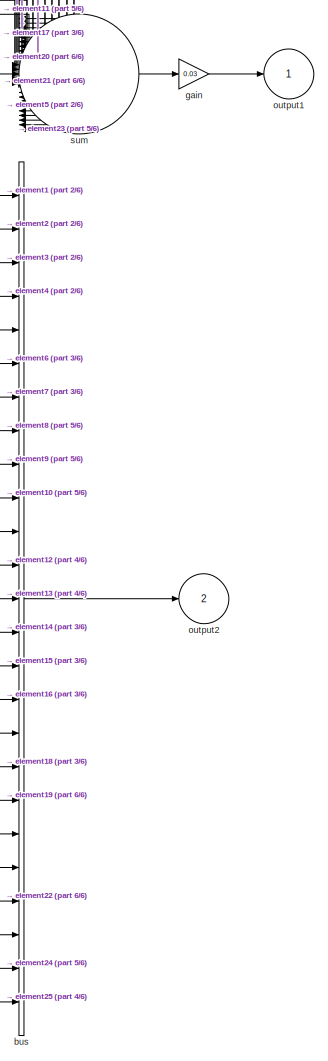
[diagram: root canvas - part 1/6, top right region]
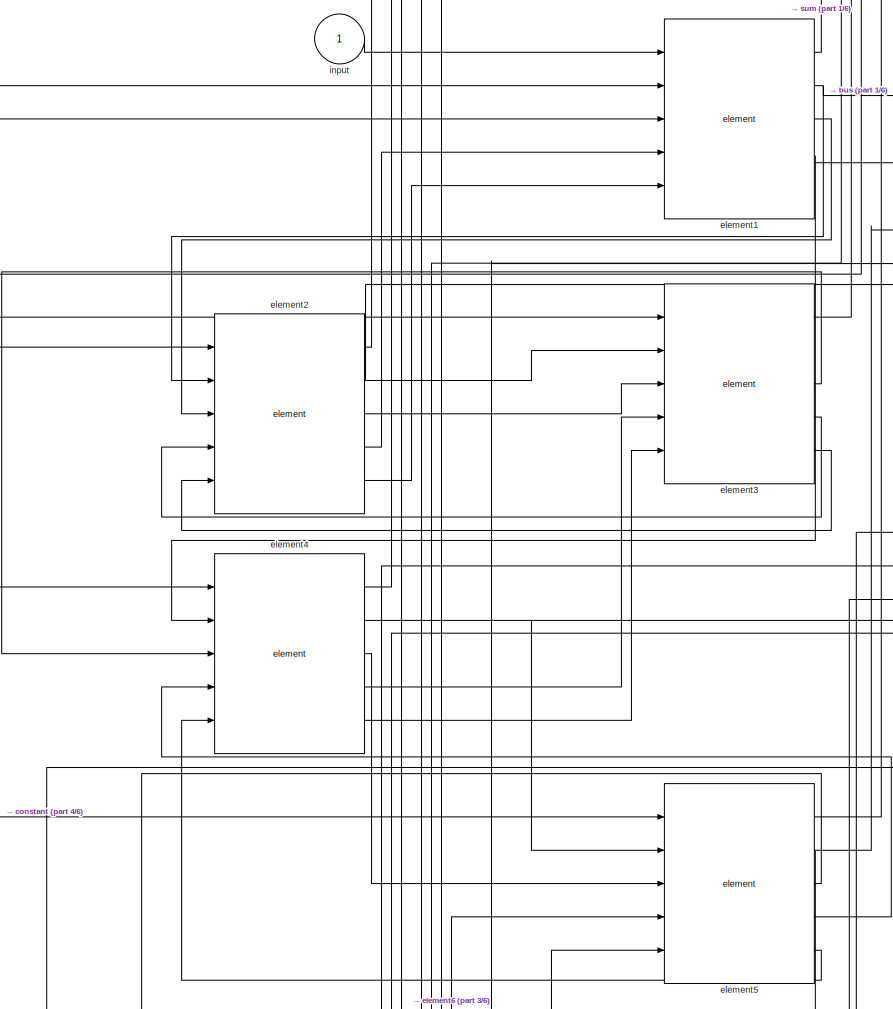
[diagram: root canvas - part 2/6, top center region]
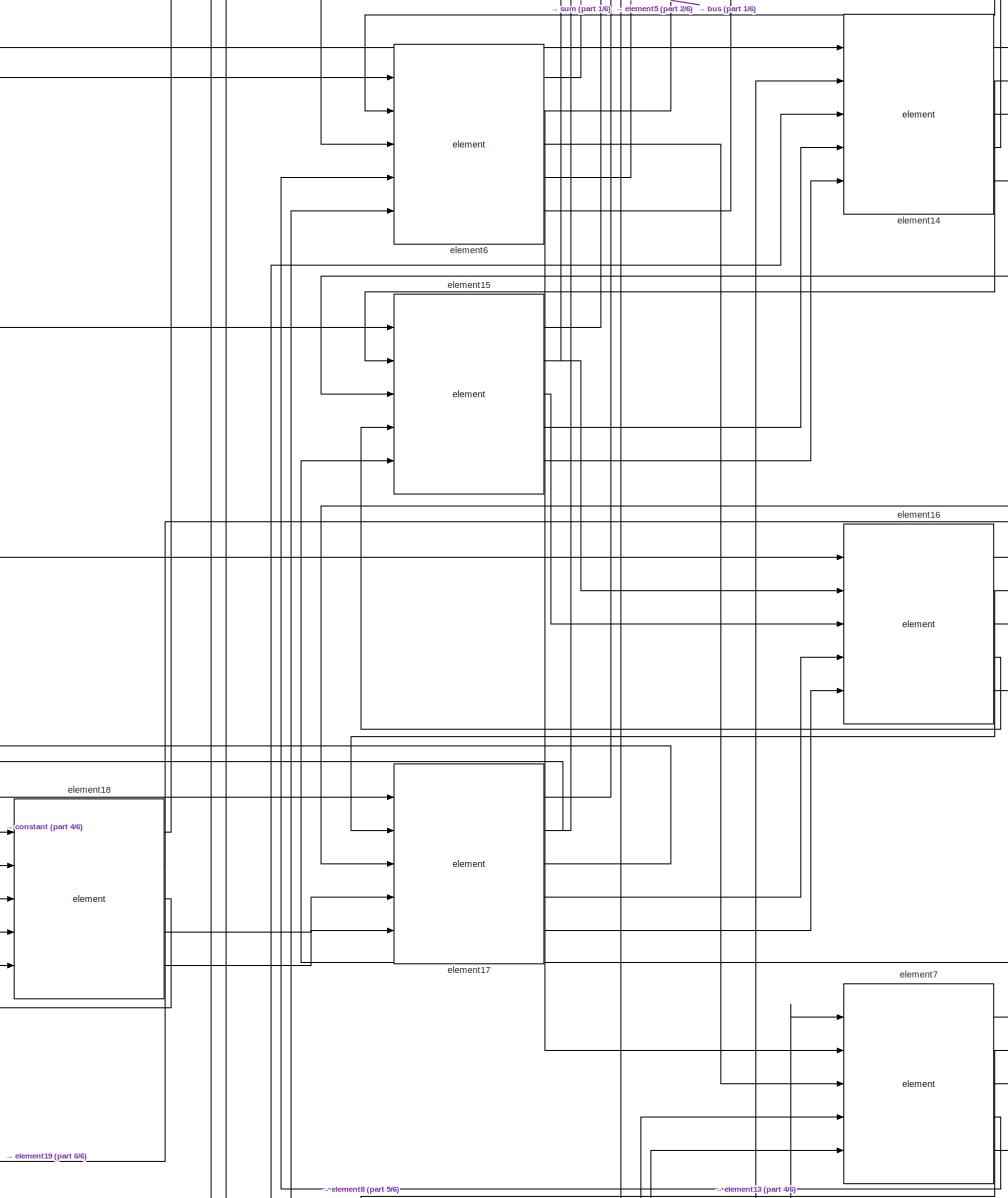
[diagram: root canvas - part 3/6, central region]
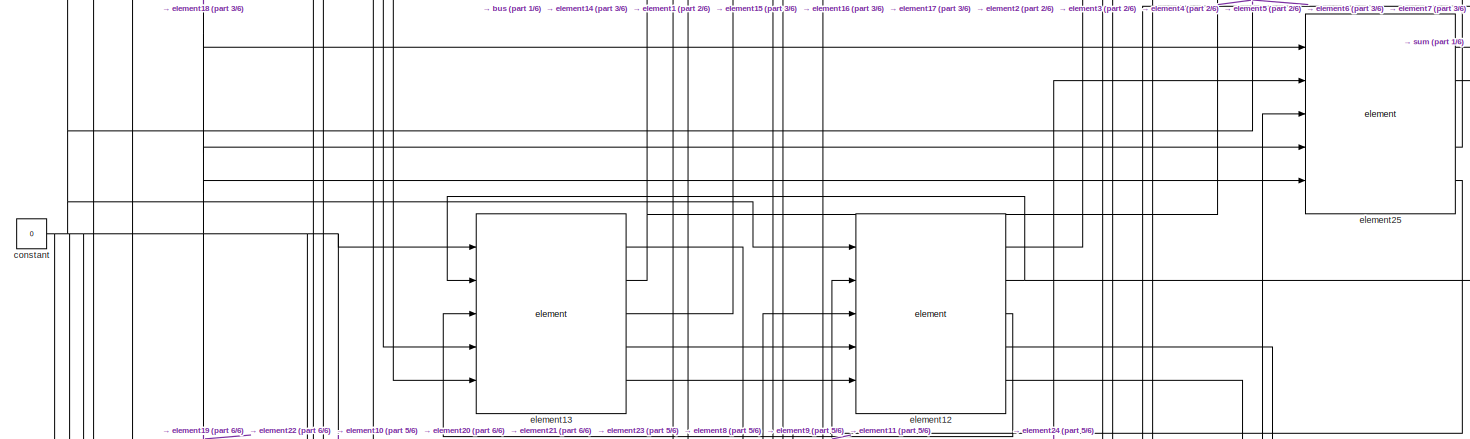
[diagram: root canvas - part 4/6, middle left region]
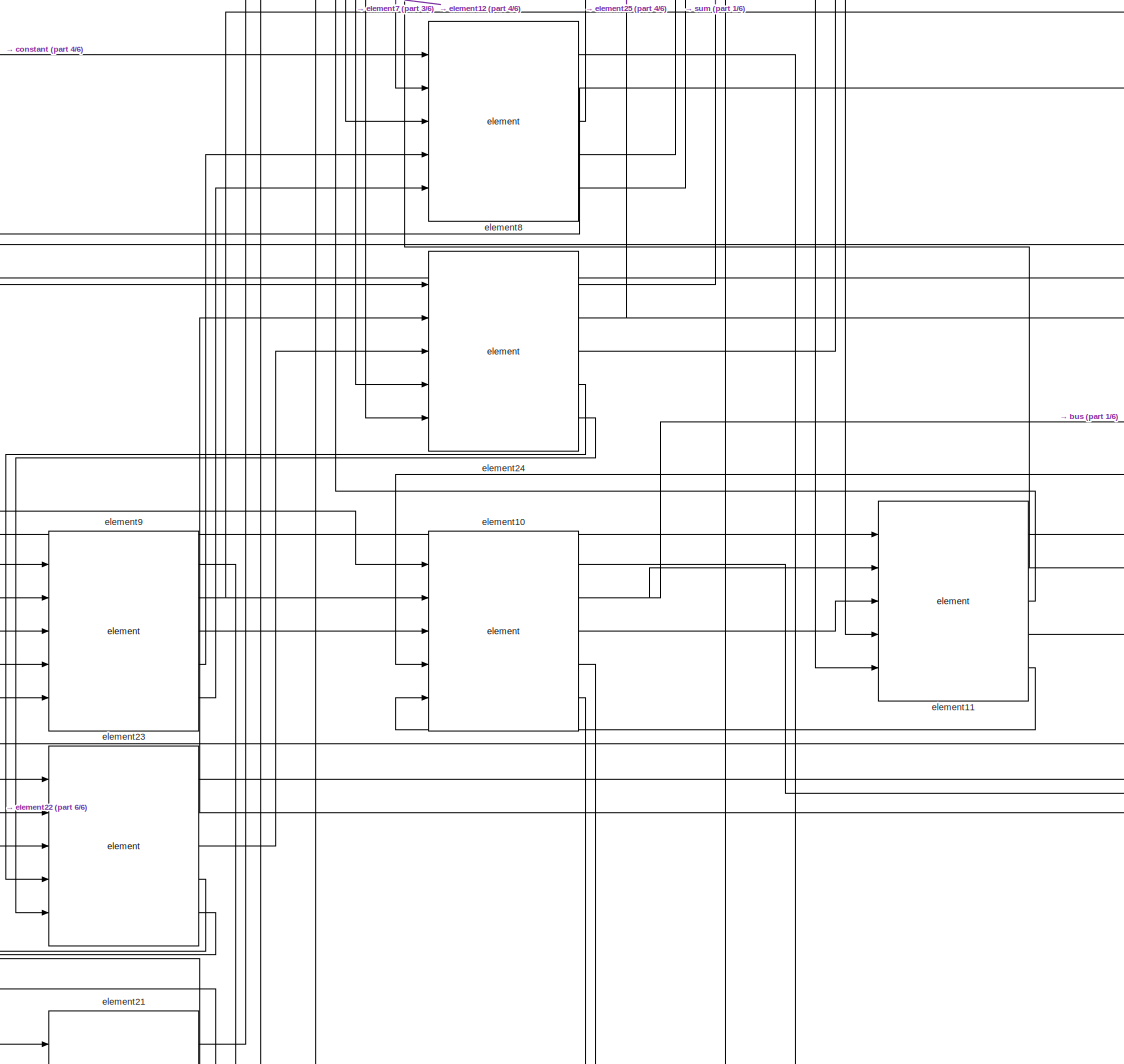
[diagram: root canvas - part 5/6, bottom center region]
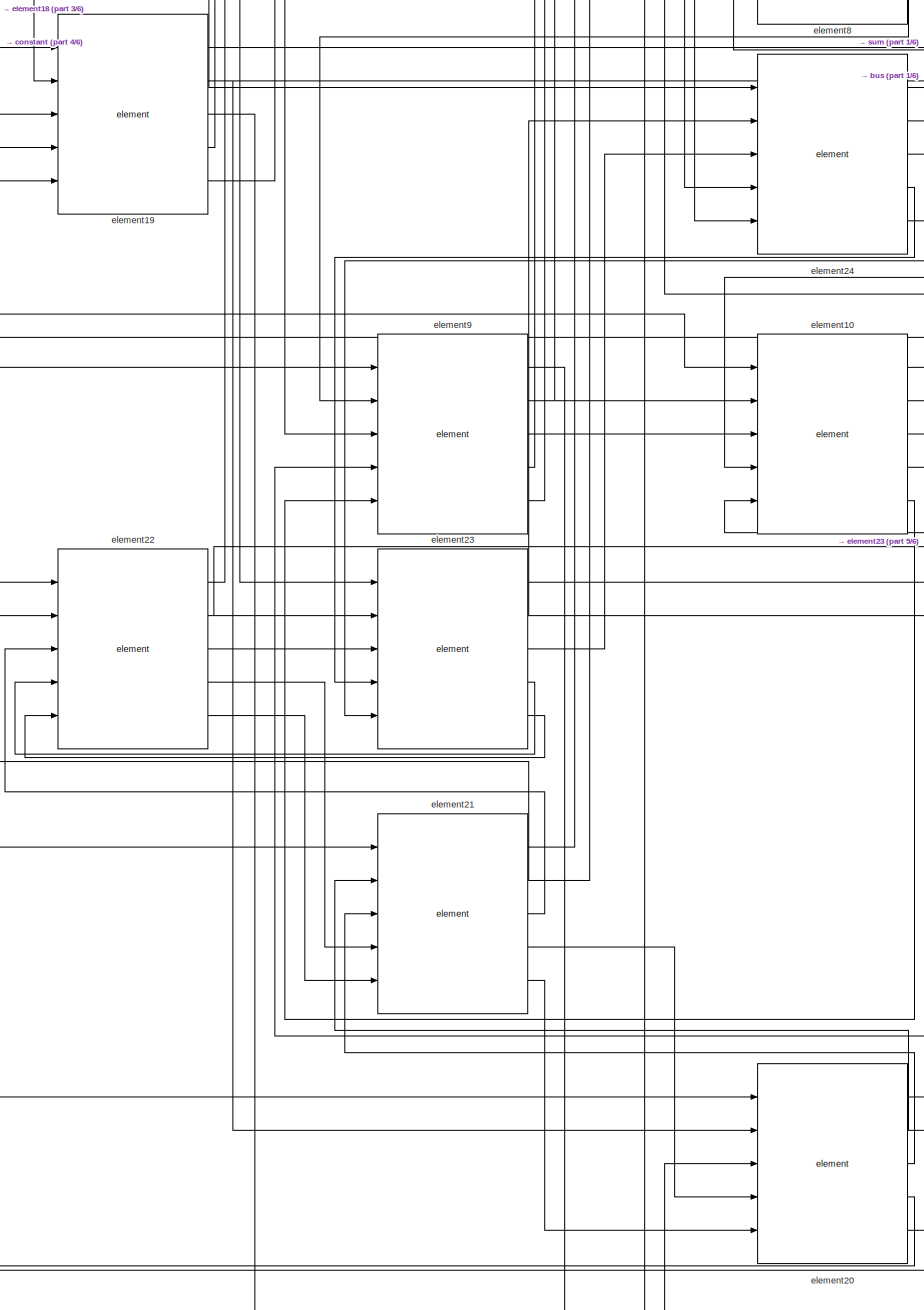
[diagram: root canvas - part 6/6, bottom left region]
MODEL slx_1d343650d4c6
KIND model
CONFIG AbsTol = auto
CONFIG EnableMultiTasking = off
CONFIG FixedStep = auto
CONFIG MaxStep = auto
CONFIG MinStep = auto
CONFIG RelTol = 1e-3
CONFIG SampleTimeConstraint = Unconstrained
CONFIG SolverName = ode23t
CONFIG StartTime = 0.0
CONFIG StopTime = 10.0
BLOCK [BusCreator] bus
  DisplayOption = bar
  InheritFromInputs = on
  Inputs = 25
  Ports = [25, 1]
BLOCK [Constant] constant
  Value = 0
BLOCK [Reference] element1  REF=lib_beam/element  (lib defined in slx_f71b63bb8612)
  Ports = [5, 5]
  SourceBlock = lib_beam/element
BLOCK [Reference] element10  REF=lib_beam/element  (lib defined in slx_f71b63bb8612)
  Ports = [5, 5]
  SourceBlock = lib_beam/element
BLOCK [Reference] element11  REF=lib_beam/element  (lib defined in slx_f71b63bb8612)
  Ports = [5, 5]
  SourceBlock = lib_beam/element
BLOCK [Reference] element12  REF=lib_beam/element  (lib defined in slx_f71b63bb8612)
  Ports = [5, 5]
  SourceBlock = lib_beam/element
BLOCK [Reference] element13  REF=lib_beam/element  (lib defined in slx_f71b63bb8612)
  Ports = [5, 5]
  SourceBlock = lib_beam/element
BLOCK [Reference] element14  REF=lib_beam/element  (lib defined in slx_f71b63bb8612)
  Ports = [5, 5]
  SourceBlock = lib_beam/element
BLOCK [Reference] element15  REF=lib_beam/element  (lib defined in slx_f71b63bb8612)
  Ports = [5, 5]
  SourceBlock = lib_beam/element
BLOCK [Reference] element16  REF=lib_beam/element  (lib defined in slx_f71b63bb8612)
  Ports = [5, 5]
  SourceBlock = lib_beam/element
BLOCK [Reference] element17  REF=lib_beam/element  (lib defined in slx_f71b63bb8612)
  Ports = [5, 5]
  SourceBlock = lib_beam/element
BLOCK [Reference] element18  REF=lib_beam/element  (lib defined in slx_f71b63bb8612)
  Ports = [5, 5]
  SourceBlock = lib_beam/element
BLOCK [Reference] element19  REF=lib_beam/element  (lib defined in slx_f71b63bb8612)
  Ports = [5, 5]
  SourceBlock = lib_beam/element
BLOCK [Reference] element2  REF=lib_beam/element  (lib defined in slx_f71b63bb8612)
  Ports = [5, 5]
  SourceBlock = lib_beam/element
BLOCK [Reference] element20  REF=lib_beam/element  (lib defined in slx_f71b63bb8612)
  Ports = [5, 5]
  SourceBlock = lib_beam/element
BLOCK [Reference] element21  REF=lib_beam/element  (lib defined in slx_f71b63bb8612)
  Ports = [5, 5]
  SourceBlock = lib_beam/element
BLOCK [Reference] element22  REF=lib_beam/element  (lib defined in slx_f71b63bb8612)
  Ports = [5, 5]
  SourceBlock = lib_beam/element
BLOCK [Reference] element23  REF=lib_beam/element  (lib defined in slx_f71b63bb8612)
  Ports = [5, 5]
  SourceBlock = lib_beam/element
BLOCK [Reference] element24  REF=lib_beam/element  (lib defined in slx_f71b63bb8612)
  Ports = [5, 5]
  SourceBlock = lib_beam/element
BLOCK [Reference] element25  REF=lib_beam/element  (lib defined in slx_f71b63bb8612)
  Ports = [5, 5]
  SourceBlock = lib_beam/element
BLOCK [Reference] element3  REF=lib_beam/element  (lib defined in slx_f71b63bb8612)
  Ports = [5, 5]
  SourceBlock = lib_beam/element
BLOCK [Reference] element4  REF=lib_beam/element  (lib defined in slx_f71b63bb8612)
  Ports = [5, 5]
  SourceBlock = lib_beam/element
BLOCK [Reference] element5  REF=lib_beam/element  (lib defined in slx_f71b63bb8612)
  Ports = [5, 5]
  SourceBlock = lib_beam/element
BLOCK [Reference] element6  REF=lib_beam/element  (lib defined in slx_f71b63bb8612)
  Ports = [5, 5]
  SourceBlock = lib_beam/element
BLOCK [Reference] element7  REF=lib_beam/element  (lib defined in slx_f71b63bb8612)
  Ports = [5, 5]
  SourceBlock = lib_beam/element
BLOCK [Reference] element8  REF=lib_beam/element  (lib defined in slx_f71b63bb8612)
  Ports = [5, 5]
  SourceBlock = lib_beam/element
BLOCK [Reference] element9  REF=lib_beam/element  (lib defined in slx_f71b63bb8612)
  Ports = [5, 5]
  SourceBlock = lib_beam/element
BLOCK [Gain] gain
  Gain = 0.03
BLOCK [Inport] input
BLOCK [Outport] output1
BLOCK [Outport] output2
  Port = 2
BLOCK [Sum] sum
  Inputs = 25
  Ports = [25, 1]
LINE bus:1 -> output2:1
NET constant:1 -> element10:1, element11:1, element12:1, element13:1, element14:1, element15:1, element16:1, element17:1, element18:1, element19:1, element1:2, element1:3, element20:1, element21:1, element22:1, element23:1, element24:1, element25:1, element25:4, element25:5, element2:1, element3:1, element4:1, element5:1, element6:1, element7:1, element8:1, element9:1
LINE element10:1 -> sum:10
NET element10:2 -> bus:10, element11:2
LINE element10:3 -> element11:3
LINE element10:4 -> element9:4
LINE element10:5 -> element9:5
LINE element11:1 -> sum:11
NET element11:2 -> bus:11, element12:2
LINE element11:3 -> element12:3
LINE element11:4 -> element10:4
LINE element11:5 -> element10:5
LINE element12:1 -> sum:12
NET element12:2 -> bus:12, element13:2
LINE element12:3 -> element13:3
LINE element12:4 -> element11:4
LINE element12:5 -> element11:5
LINE element13:1 -> sum:13
NET element13:2 -> bus:13, element14:2
LINE element13:3 -> element14:3
LINE element13:4 -> element12:4
LINE element13:5 -> element12:5
LINE element14:1 -> sum:14
NET element14:2 -> bus:14, element15:2
LINE element14:3 -> element15:3
LINE element14:4 -> element13:4
LINE element14:5 -> element13:5
LINE element15:1 -> sum:15
NET element15:2 -> bus:15, element16:2
LINE element15:3 -> element16:3
LINE element15:4 -> element14:4
LINE element15:5 -> element14:5
LINE element16:1 -> sum:16
NET element16:2 -> bus:16, element17:2
LINE element16:3 -> element17:3
LINE element16:4 -> element15:4
LINE element16:5 -> element15:5
LINE element17:1 -> sum:17
NET element17:2 -> bus:17, element18:2
LINE element17:3 -> element18:3
LINE element17:4 -> element16:4
LINE element17:5 -> element16:5
LINE element18:1 -> sum:18
NET element18:2 -> bus:18, element19:2
LINE element18:3 -> element19:3
LINE element18:4 -> element17:4
LINE element18:5 -> element17:5
LINE element19:1 -> sum:19
NET element19:2 -> bus:19, element20:2
LINE element19:3 -> element20:3
LINE element19:4 -> element18:4
LINE element19:5 -> element18:5
LINE element1:1 -> sum:1
NET element1:2 -> bus:1, element2:2
LINE element1:3 -> element2:3
LINE element20:1 -> sum:20
NET element20:2 -> bus:20, element21:2
LINE element20:3 -> element21:3
LINE element20:4 -> element19:4
LINE element20:5 -> element19:5
LINE element21:1 -> sum:21
NET element21:2 -> bus:21, element22:2
LINE element21:3 -> element22:3
LINE element21:4 -> element20:4
LINE element21:5 -> element20:5
LINE element22:1 -> sum:22
NET element22:2 -> bus:22, element23:2
LINE element22:3 -> element23:3
LINE element22:4 -> element21:4
LINE element22:5 -> element21:5
LINE element23:1 -> sum:23
NET element23:2 -> bus:23, element24:2
LINE element23:3 -> element24:3
LINE element23:4 -> element22:4
LINE element23:5 -> element22:5
LINE element24:1 -> sum:24
NET element24:2 -> bus:24, element25:2
LINE element24:3 -> element25:3
LINE element24:4 -> element23:4
LINE element24:5 -> element23:5
LINE element25:1 -> sum:25
LINE element25:2 -> bus:25
LINE element25:4 -> element24:4
LINE element25:5 -> element24:5
LINE element2:1 -> sum:2
NET element2:2 -> bus:2, element3:2
LINE element2:3 -> element3:3
LINE element2:4 -> element1:4
LINE element2:5 -> element1:5
LINE element3:1 -> sum:3
NET element3:2 -> bus:3, element4:2
LINE element3:3 -> element4:3
LINE element3:4 -> element2:4
LINE element3:5 -> element2:5
LINE element4:1 -> sum:4
NET element4:2 -> bus:4, element5:2
LINE element4:3 -> element5:3
LINE element4:4 -> element3:4
LINE element4:5 -> element3:5
LINE element5:1 -> sum:5
NET element5:2 -> bus:5, element6:2
LINE element5:3 -> element6:3
LINE element5:4 -> element4:4
LINE element5:5 -> element4:5
LINE element6:1 -> sum:6
NET element6:2 -> bus:6, element7:2
LINE element6:3 -> element7:3
LINE element6:4 -> element5:4
LINE element6:5 -> element5:5
LINE element7:1 -> sum:7
NET element7:2 -> bus:7, element8:2
LINE element7:3 -> element8:3
LINE element7:4 -> element6:4
LINE element7:5 -> element6:5
LINE element8:1 -> sum:8
NET element8:2 -> bus:8, element9:2
LINE element8:3 -> element9:3
LINE element8:4 -> element7:4
LINE element8:5 -> element7:5
LINE element9:1 -> sum:9
NET element9:2 -> bus:9, element10:2
LINE element9:3 -> element10:3
LINE element9:4 -> element8:4
LINE element9:5 -> element8:5
LINE gain:1 -> output1:1
LINE input:1 -> element1:1
LINE sum:1 -> gain:1
note: NET lines group one-source signal fan-out (src -> all destinations, sorted); 1:1 wires keep LINE
